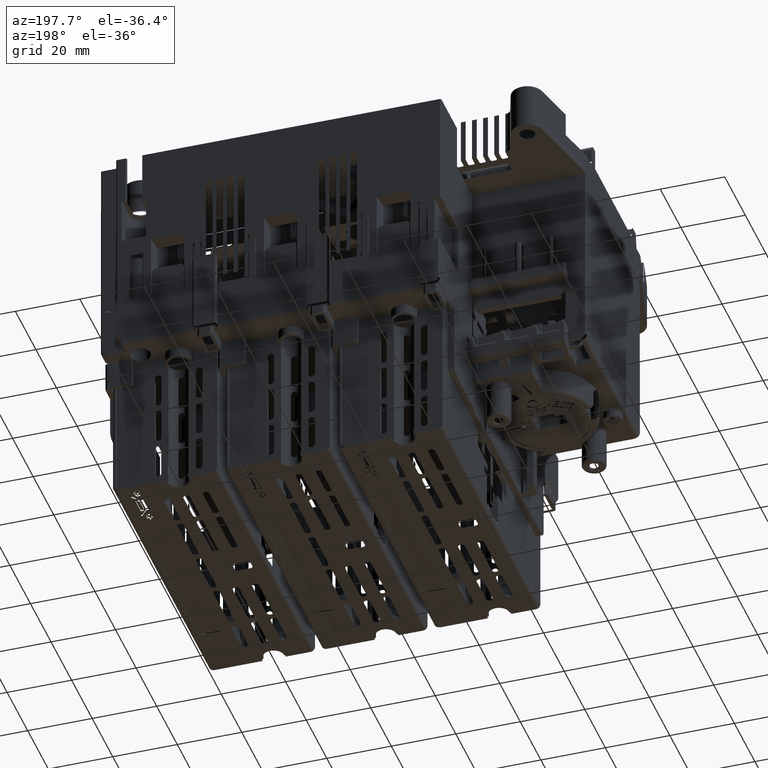
[diagram: clean part render]
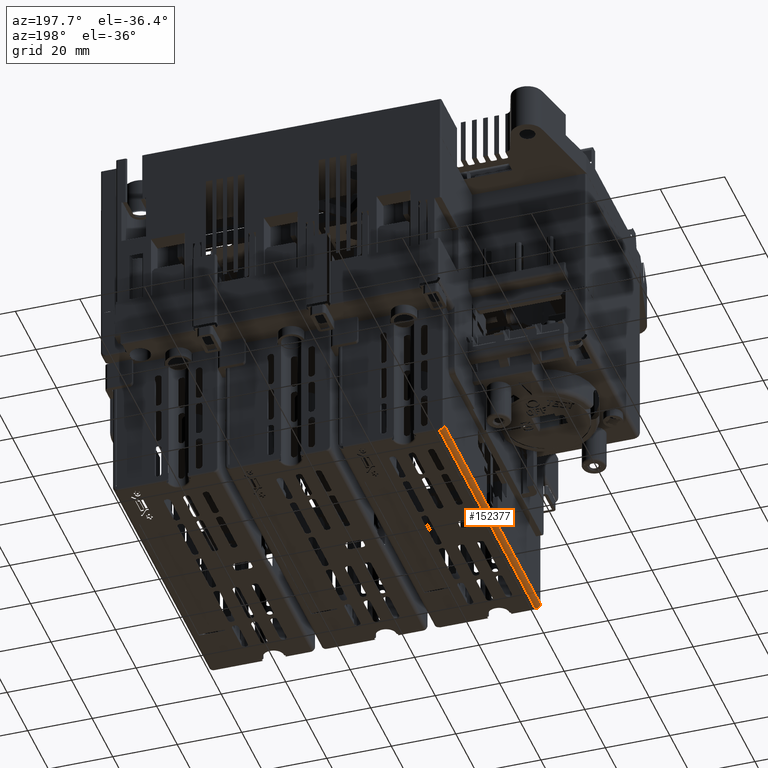
[diagram: same view with one face highlighted and labeled with its STEP entity id]
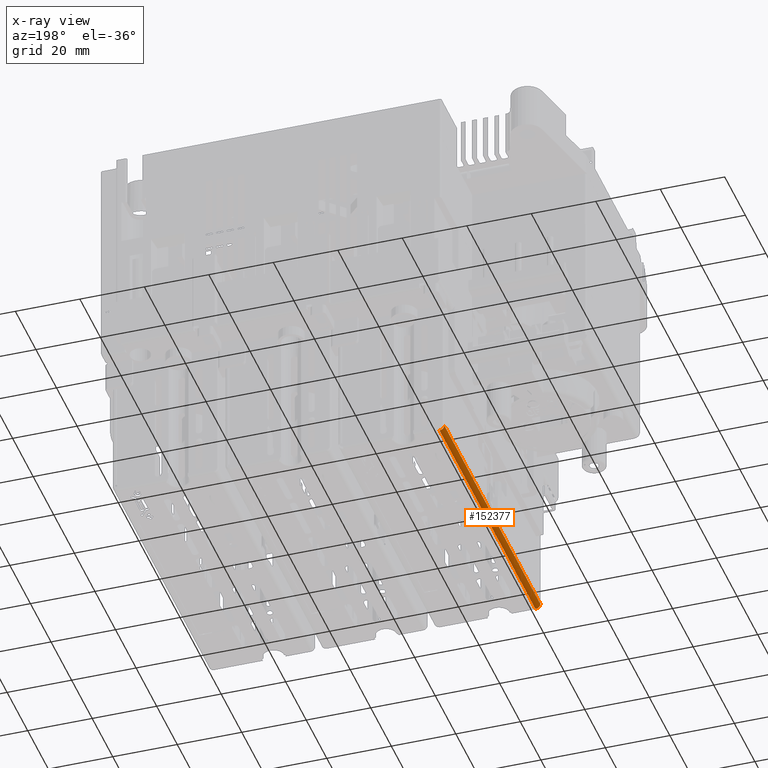
[diagram: x-ray of the same camera — body ghosted, the highlighted face saturated]
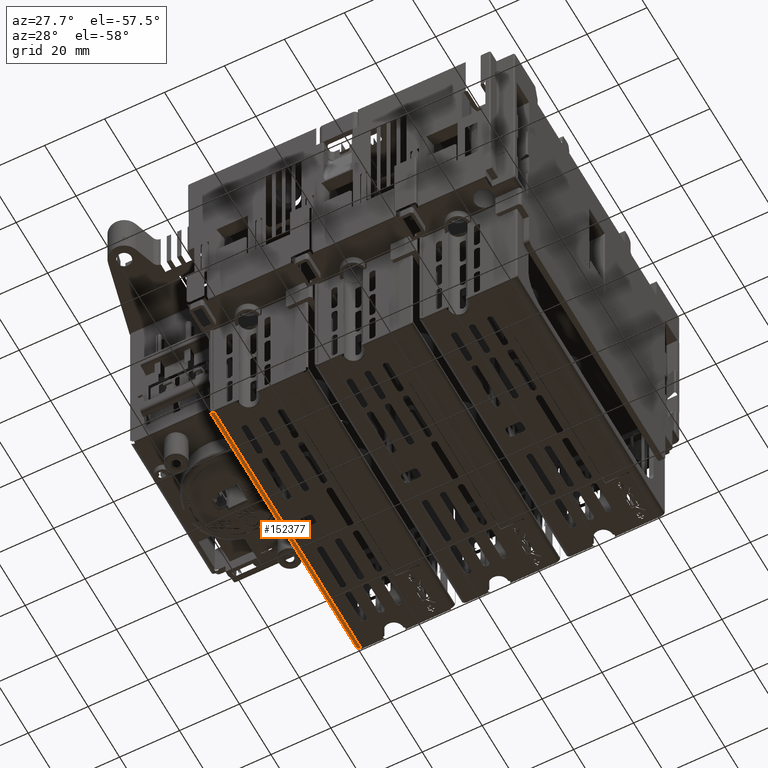
[diagram: same view with one face highlighted and labeled with its STEP entity id]
A machine part, auxiliary view. The second image highlights one B-rep face of the part: STEP entity #152377.
The next image is the same camera in x-ray: the body ghosted, the highlighted face saturated — about 0% of this face is hidden behind the body in this view.
A second angle (auxiliary view) of the same face is appended — the face is thin or edge-on in the first view.
In plain terms, the highlighted cylindrical surface (edge-blend (fillet) strip) has radius 1.5 mm, axis along (0, -1, 0).
Its self-contained STEP definition (entity closure, byte-faithful):
#144148=CARTESIAN_POINT('',(1.199967156549E2,3.679299690153E2,
7.999609065456E1));
#144149=DIRECTION('',(5.675083969399E-11,1.E0,5.515380899148E-11));
#144150=DIRECTION('',(-4.831690603096E-13,5.513811629416E-11,-1.E0));
#144151=AXIS2_PLACEMENT_3D('',#144148,#144149,#144150);
#145825=CARTESIAN_POINT('',(1.199967156549E2,4.612299690153E2,
7.999609065454E1));
#145826=DIRECTION('',(-1.714363531667E-11,-1.E0,-1.449151573828E-11));
#145827=DIRECTION('',(-1.E0,1.712881688344E-11,7.901235221677E-11));
#145828=AXIS2_PLACEMENT_3D('',#145825,#145826,#145827);
#146069=DIRECTION('',(2.695949929895E-14,1.E0,0.E0));
#146070=VECTOR('',#146069,9.329999999997E1);
#146071=CARTESIAN_POINT('',(1.199967156549E2,3.679299690153E2,
7.849609065454E1));
#146072=LINE('',#146071,#146070);
#146073=DIRECTION('',(-1.054894300338E-7,-1.E0,1.031180179727E-13));
#146074=VECTOR('',#146073,4.465094479362E1);
#146075=CARTESIAN_POINT('',(1.184967399197E2,4.612299690153E2,
7.999609065470E1));
#146076=LINE('',#146075,#146074);
#146077=CARTESIAN_POINT('',(1.199967156549E2,4.165790242217E2,
7.999609065454E1));
#146078=DIRECTION('',(0.E0,-1.E0,0.E0));
#146079=DIRECTION('',(-1.E0,0.E0,7.901235221679E-11));
#146080=AXIS2_PLACEMENT_3D('',#146077,#146078,#146079);
#146082=DIRECTION('',(0.E0,-1.E0,0.E0));
#146083=VECTOR('',#146082,4.E0);
#146084=CARTESIAN_POINT('',(1.185101490253E2,4.165790242217E2,
7.979579173844E1));
#146085=LINE('',#146084,#146083);
#146086=CARTESIAN_POINT('',(1.199967156549E2,4.125790242217E2,
7.999609065454E1));
#146087=DIRECTION('',(0.E0,1.E0,0.E0));
#146088=DIRECTION('',(-9.910444197263E-1,0.E0,-1.335326107335E-1));
#146089=AXIS2_PLACEMENT_3D('',#146086,#146087,#146088);
#146091=DIRECTION('',(-5.143747734708E-7,-9.999999999999E-1,
-2.749930187147E-12));
#146092=VECTOR('',#146091,4.464905520628E1);
#146093=CARTESIAN_POINT('',(1.184967326138E2,4.125790242217E2,
7.999609065464E1));
#146094=LINE('',#146093,#146092);
#149127=CARTESIAN_POINT('',(1.184967156549E2,4.165790242217E2,
7.999609065466E1));
#149128=CARTESIAN_POINT('',(1.185101490253E2,4.165790242217E2,
7.979579173844E1));
#149129=VERTEX_POINT('',#149127);
#149130=VERTEX_POINT('',#149128);
#149131=CARTESIAN_POINT('',(1.185101490253E2,4.125790242217E2,
7.979579173844E1));
#149132=VERTEX_POINT('',#149131);
#149133=CARTESIAN_POINT('',(1.184967156549E2,4.125790242217E2,
7.999609065457E1));
#149134=VERTEX_POINT('',#149133);
#150445=CARTESIAN_POINT('',(1.199967156549E2,4.612299690153E2,
7.849609065454E1));
#150446=VERTEX_POINT('',#150445);
#150447=CARTESIAN_POINT('',(1.199967156549E2,3.679299690153E2,
7.849609065454E1));
#150448=VERTEX_POINT('',#150447);
#150505=CARTESIAN_POINT('',(1.184967156549E2,3.679299690154E2,
7.999609065457E1));
#150506=VERTEX_POINT('',#150505);
#150507=CARTESIAN_POINT('',(1.184967156549E2,4.612299690153E2,
7.999609065466E1));
#150508=VERTEX_POINT('',#150507);
#152359=CARTESIAN_POINT('',(1.199967156549E2,4.146299690153E2,
7.999609065454E1));
#152360=DIRECTION('',(0.E0,-1.E0,0.E0));
#152361=DIRECTION('',(-7.648421872800E-1,0.E0,6.442176872430E-1));
#152362=AXIS2_PLACEMENT_3D('',#152359,#152360,#152361);
#152363=CYLINDRICAL_SURFACE('',#152362,1.499999999995E0);
#152364=ORIENTED_EDGE('',*,*,#151391,.F.);
#152365=ORIENTED_EDGE('',*,*,#151433,.T.);
#152366=ORIENTED_EDGE('',*,*,#152212,.F.);
#152367=ORIENTED_EDGE('',*,*,#151316,.T.);
#152369=ORIENTED_EDGE('',*,*,#152368,.T.);
#152371=ORIENTED_EDGE('',*,*,#152370,.T.);
#152373=ORIENTED_EDGE('',*,*,#152372,.T.);
#152374=ORIENTED_EDGE('',*,*,#151243,.T.);
#152375=EDGE_LOOP('',(#152364,#152365,#152366,#152367,#152369,#152371,#152373,
#152374));
#152376=FACE_OUTER_BOUND('',#152375,.F.);
#152377=ADVANCED_FACE('',(#152376),#152363,.T.);
#144152=CIRCLE('',#144151,1.500000000023E0);
#145829=CIRCLE('',#145828,1.499999999995E0);
#146081=CIRCLE('',#146080,1.499999999995E0);
#146090=CIRCLE('',#146089,1.499999999995E0);
#151243=EDGE_CURVE('',#149134,#150506,#146094,.T.);
#151316=EDGE_CURVE('',#150508,#149129,#146076,.T.);
#151391=EDGE_CURVE('',#150448,#150506,#144152,.T.);
#151433=EDGE_CURVE('',#150448,#150446,#146072,.T.);
#152212=EDGE_CURVE('',#150508,#150446,#145829,.T.);
#152368=EDGE_CURVE('',#149129,#149130,#146081,.T.);
#152370=EDGE_CURVE('',#149130,#149132,#146085,.T.);
#152372=EDGE_CURVE('',#149132,#149134,#146090,.T.);